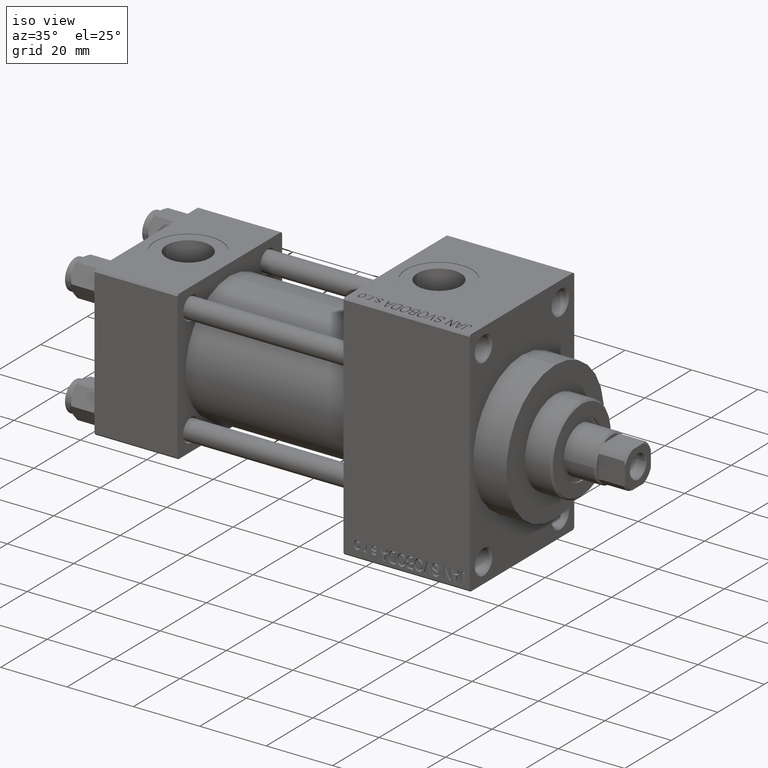
[diagram: clean part render]
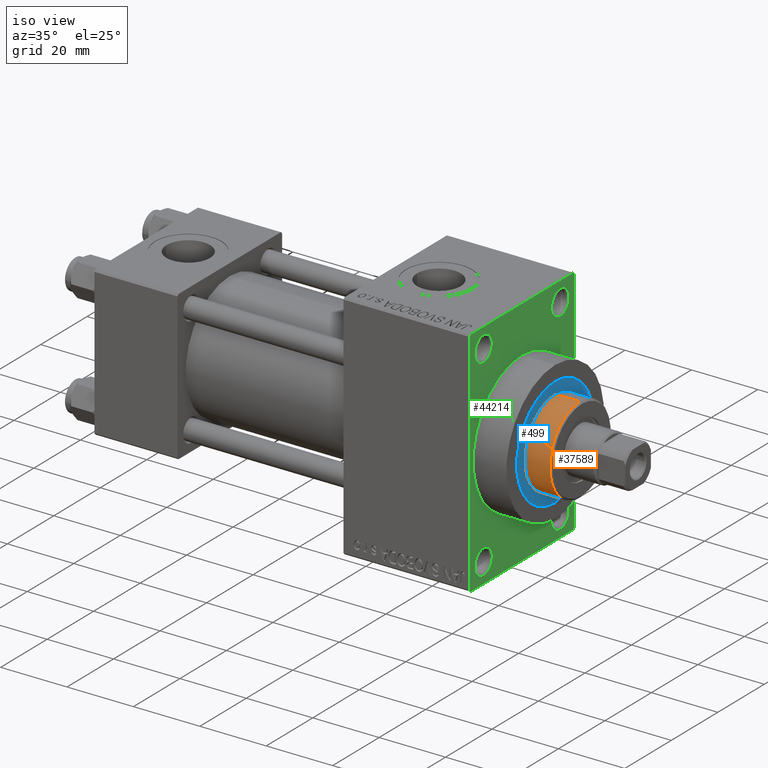
[diagram: same view with three faces highlighted in distinct colors, each labeled with its STEP entity id]
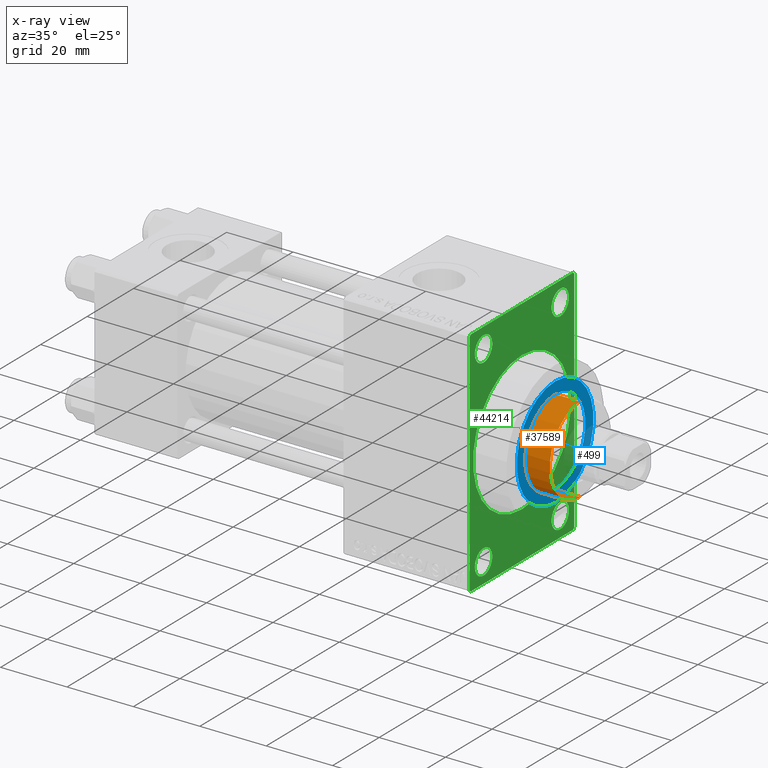
[diagram: x-ray of the same camera — body ghosted, the three highlighted faces saturated]
A machine part, iso view with three faces highlighted in distinct colors.
The next image is the same camera in x-ray (body ghosted, the three faces saturated) — at least one of them is partly hidden behind the body in this view.
Their STEP definitions:

[orange] entity #37589 — the highlighted cylindrical surface (partial cylindrical patch) has radius 13 mm, axis along (-1, 0, 0).
#790 = CIRCLE ( 'NONE', #41210, 13.00000000000000178 ) ;
#2930 = LINE ( 'NONE', #36934, #48060 ) ;
#4318 = CARTESIAN_POINT ( 'NONE',  ( 0.000000000000000000, 0.000000000000000000, 43.25999999999999801 ) ) ;
#8083 = CARTESIAN_POINT ( 'NONE',  ( -13.00000000000000178, 0.000000000000000000, 50.75999999999997669 ) ) ;
#8290 = CYLINDRICAL_SURFACE ( 'NONE', #13340, 13.00000000000000178 ) ;
#9395 = DIRECTION ( 'NONE',  ( 0.000000000000000000, 0.000000000000000000, -1.000000000000000000 ) ) ;
#9449 = DIRECTION ( 'NONE',  ( -0.000000000000000000, -0.000000000000000000, -1.000000000000000000 ) ) ;
#10491 = EDGE_CURVE ( 'NONE', #21892, #45975, #2930, .T. ) ;
#11060 = CARTESIAN_POINT ( 'NONE',  ( -13.00000000000000178, 0.000000000000000000, 51.25999999999999801 ) ) ;
#11310 = DIRECTION ( 'NONE',  ( -0.000000000000000000, -0.000000000000000000, -1.000000000000000000 ) ) ;
#11358 = ORIENTED_EDGE ( 'NONE', *, *, #19814, .T. ) ;
#11648 = VECTOR ( 'NONE', #11310, 1000.000000000000000 ) ;
#12006 = DIRECTION ( 'NONE',  ( 1.000000000000000000, 0.000000000000000000, 0.000000000000000000 ) ) ;
#12944 = EDGE_CURVE ( 'NONE', #25234, #23628, #26227, .T. ) ;
#13340 = AXIS2_PLACEMENT_3D ( 'NONE', #23190, #9449, #19457 ) ;
#16024 = EDGE_LOOP ( 'NONE', ( #11358, #32258, #41852, #42076 ) ) ;
#18295 = CARTESIAN_POINT ( 'NONE',  ( 13.00000000000000178, 1.592040838891559293E-15, 50.75999999999997669 ) ) ;
#19457 = DIRECTION ( 'NONE',  ( -1.000000000000000000, 0.000000000000000000, 0.000000000000000000 ) ) ;
#19814 = EDGE_CURVE ( 'NONE', #25234, #21892, #790, .T. ) ;
#21179 = CIRCLE ( 'NONE', #48946, 13.00000000000000178 ) ;
#21892 = VERTEX_POINT ( 'NONE', #18295 ) ;
#23190 = CARTESIAN_POINT ( 'NONE',  ( 0.000000000000000000, 0.000000000000000000, 51.25999999999999801 ) ) ;
#23628 = VERTEX_POINT ( 'NONE', #24007 ) ;
#24007 = CARTESIAN_POINT ( 'NONE',  ( -13.00000000000000178, 0.000000000000000000, 43.25999999999999801 ) ) ;
#24565 = DIRECTION ( 'NONE',  ( 1.000000000000000000, 0.000000000000000000, 0.000000000000000000 ) ) ;
#25234 = VERTEX_POINT ( 'NONE', #8083 ) ;
#26227 = LINE ( 'NONE', #11060, #11648 ) ;
#28285 = CARTESIAN_POINT ( 'NONE',  ( 0.000000000000000000, 0.000000000000000000, 50.75999999999997669 ) ) ;
#30933 = CARTESIAN_POINT ( 'NONE',  ( 13.00000000000000178, 1.592040838891559293E-15, 43.25999999999999801 ) ) ;
#31194 = EDGE_CURVE ( 'NONE', #45975, #23628, #21179, .T. ) ;
#32258 = ORIENTED_EDGE ( 'NONE', *, *, #10491, .T. ) ;
#36696 = DIRECTION ( 'NONE',  ( -0.000000000000000000, -0.000000000000000000, -1.000000000000000000 ) ) ;
#36934 = CARTESIAN_POINT ( 'NONE',  ( 13.00000000000000178, 1.592040838891559293E-15, 51.25999999999999801 ) ) ;
#37589 = ADVANCED_FACE ( 'NONE', ( #46027 ), #8290, .T. ) ;
#41210 = AXIS2_PLACEMENT_3D ( 'NONE', #28285, #9395, #24565 ) ;
#41852 = ORIENTED_EDGE ( 'NONE', *, *, #31194, .T. ) ;
#42076 = ORIENTED_EDGE ( 'NONE', *, *, #12944, .F. ) ;
#45975 = VERTEX_POINT ( 'NONE', #30933 ) ;
#46024 = DIRECTION ( 'NONE',  ( 0.000000000000000000, 0.000000000000000000, 1.000000000000000000 ) ) ;
#46027 = FACE_OUTER_BOUND ( 'NONE', #16024, .T. ) ;
#48060 = VECTOR ( 'NONE', #36696, 1000.000000000000000 ) ;
#48946 = AXIS2_PLACEMENT_3D ( 'NONE', #4318, #46024, #12006 ) ;

[blue] entity #499 — the highlighted planar face has unit normal (1, -0, -0).
#381 = EDGE_LOOP ( 'NONE', ( #10657, #14190 ) ) ;
#499 = ADVANCED_FACE ( 'NONE', ( #3383, #21751 ), #28736, .T. ) ;
#2591 = AXIS2_PLACEMENT_3D ( 'NONE', #21521, #6139, #44601 ) ;
#3194 = CARTESIAN_POINT ( 'NONE',  ( 16.50000000000000000, 2.020667218593133100E-15, 43.25999999999999801 ) ) ;
#3383 = FACE_BOUND ( 'NONE', #40912, .T. ) ;
#4318 = CARTESIAN_POINT ( 'NONE',  ( 0.000000000000000000, 0.000000000000000000, 43.25999999999999801 ) ) ;
#4737 = CARTESIAN_POINT ( 'NONE',  ( 0.000000000000000000, 0.000000000000000000, 43.25999999999999801 ) ) ;
#5072 = ORIENTED_EDGE ( 'NONE', *, *, #23498, .F. ) ;
#6139 = DIRECTION ( 'NONE',  ( 0.000000000000000000, 0.000000000000000000, 1.000000000000000000 ) ) ;
#8552 = CIRCLE ( 'NONE', #26793, 16.50000000000000000 ) ;
#10657 = ORIENTED_EDGE ( 'NONE', *, *, #36078, .T. ) ;
#12006 = DIRECTION ( 'NONE',  ( 1.000000000000000000, 0.000000000000000000, 0.000000000000000000 ) ) ;
#12713 = VERTEX_POINT ( 'NONE', #3194 ) ;
#13451 = AXIS2_PLACEMENT_3D ( 'NONE', #17591, #28287, #43673 ) ;
#13821 = CARTESIAN_POINT ( 'NONE',  ( 0.000000000000000000, 0.000000000000000000, 43.25999999999999801 ) ) ;
#14190 = ORIENTED_EDGE ( 'NONE', *, *, #49106, .T. ) ;
#17591 = CARTESIAN_POINT ( 'NONE',  ( 0.000000000000000000, 0.000000000000000000, 43.25999999999999801 ) ) ;
#19870 = DIRECTION ( 'NONE',  ( 0.000000000000000000, 0.000000000000000000, 1.000000000000000000 ) ) ;
#21179 = CIRCLE ( 'NONE', #48946, 13.00000000000000178 ) ;
#21278 = DIRECTION ( 'NONE',  ( 1.000000000000000000, 0.000000000000000000, 0.000000000000000000 ) ) ;
#21521 = CARTESIAN_POINT ( 'NONE',  ( 0.000000000000000000, 0.000000000000000000, 43.25999999999999801 ) ) ;
#21751 = FACE_OUTER_BOUND ( 'NONE', #381, .T. ) ;
#23498 = EDGE_CURVE ( 'NONE', #23628, #45975, #26153, .T. ) ;
#23628 = VERTEX_POINT ( 'NONE', #24007 ) ;
#24007 = CARTESIAN_POINT ( 'NONE',  ( -13.00000000000000178, 0.000000000000000000, 43.25999999999999801 ) ) ;
#26153 = CIRCLE ( 'NONE', #13451, 13.00000000000000178 ) ;
#26793 = AXIS2_PLACEMENT_3D ( 'NONE', #4737, #19870, #28566 ) ;
#28287 = DIRECTION ( 'NONE',  ( 0.000000000000000000, 0.000000000000000000, 1.000000000000000000 ) ) ;
#28566 = DIRECTION ( 'NONE',  ( 1.000000000000000000, 0.000000000000000000, 0.000000000000000000 ) ) ;
#28736 = PLANE ( 'NONE',  #2591 ) ;
#30933 = CARTESIAN_POINT ( 'NONE',  ( 13.00000000000000178, 1.592040838891559293E-15, 43.25999999999999801 ) ) ;
#31194 = EDGE_CURVE ( 'NONE', #45975, #23628, #21179, .T. ) ;
#32209 = DIRECTION ( 'NONE',  ( 0.000000000000000000, 0.000000000000000000, 1.000000000000000000 ) ) ;
#35844 = AXIS2_PLACEMENT_3D ( 'NONE', #13821, #32209, #21278 ) ;
#36078 = EDGE_CURVE ( 'NONE', #49147, #12713, #8552, .T. ) ;
#40882 = CARTESIAN_POINT ( 'NONE',  ( -16.50000000000000000, 0.000000000000000000, 43.25999999999999801 ) ) ;
#40912 = EDGE_LOOP ( 'NONE', ( #5072, #45953 ) ) ;
#42199 = CIRCLE ( 'NONE', #35844, 16.50000000000000000 ) ;
#43673 = DIRECTION ( 'NONE',  ( 1.000000000000000000, 0.000000000000000000, 0.000000000000000000 ) ) ;
#44601 = DIRECTION ( 'NONE',  ( 1.000000000000000000, 0.000000000000000000, -0.000000000000000000 ) ) ;
#45953 = ORIENTED_EDGE ( 'NONE', *, *, #31194, .F. ) ;
#45975 = VERTEX_POINT ( 'NONE', #30933 ) ;
#46024 = DIRECTION ( 'NONE',  ( 0.000000000000000000, 0.000000000000000000, 1.000000000000000000 ) ) ;
#48946 = AXIS2_PLACEMENT_3D ( 'NONE', #4318, #46024, #12006 ) ;
#49106 = EDGE_CURVE ( 'NONE', #12713, #49147, #42199, .T. ) ;
#49147 = VERTEX_POINT ( 'NONE', #40882 ) ;

[green] entity #44214 — the highlighted planar face has unit normal (-1, 0, 0).
#709 = DIRECTION ( 'NONE',  ( 0.000000000000000000, -1.000000000000000000, 0.000000000000000000 ) ) ;
#1058 = CARTESIAN_POINT ( 'NONE',  ( 113.0000000000000142, -16.50000000000000000, 29.00000000000000711 ) ) ;
#1971 = VERTEX_POINT ( 'NONE', #42634 ) ;
#2594 = VERTEX_POINT ( 'NONE', #40516 ) ;
#2610 = CARTESIAN_POINT ( 'NONE',  ( 113.0000000000000142, 22.49999999999999645, -34.50000000000000000 ) ) ;
#2894 = FACE_BOUND ( 'NONE', #20464, .T. ) ;
#2966 = CIRCLE ( 'NONE', #21984, 3.750000000000072831 ) ;
#3050 = VERTEX_POINT ( 'NONE', #14787 ) ;
#3070 = CIRCLE ( 'NONE', #12587, 3.750000000000072831 ) ;
#3179 = CIRCLE ( 'NONE', #39648, 3.750000000000069278 ) ;
#3399 = DIRECTION ( 'NONE',  ( 0.000000000000000000, 0.000000000000000000, 1.000000000000000000 ) ) ;
#3807 = ORIENTED_EDGE ( 'NONE', *, *, #16156, .F. ) ;
#4048 = ORIENTED_EDGE ( 'NONE', *, *, #29317, .T. ) ;
#4741 = LINE ( 'NONE', #12674, #43368 ) ;
#5004 = EDGE_CURVE ( 'NONE', #17662, #36279, #46831, .T. ) ;
#5134 = EDGE_LOOP ( 'NONE', ( #24540, #6006, #16809, #4048, #42749, #41779, #6882, #12185 ) ) ;
#5545 = CARTESIAN_POINT ( 'NONE',  ( 113.0000000000000142, -22.50000000000000355, 34.50000000000000000 ) ) ;
#5555 = VECTOR ( 'NONE', #21437, 1000.000000000000000 ) ;
#5585 = CARTESIAN_POINT ( 'NONE',  ( 113.0000000000000142, -21.99999999999998934, 35.00000000000000000 ) ) ;
#5864 = CARTESIAN_POINT ( 'NONE',  ( 113.0000000000000142, 16.50000000000000000, 29.00000000000000355 ) ) ;
#5913 = ORIENTED_EDGE ( 'NONE', *, *, #38119, .T. ) ;
#6006 = ORIENTED_EDGE ( 'NONE', *, *, #5004, .T. ) ;
#6137 = PLANE ( 'NONE',  #27876 ) ;
#6622 = DIRECTION ( 'NONE',  ( -1.000000000000000000, 0.000000000000000000, -0.000000000000000000 ) ) ;
#6882 = ORIENTED_EDGE ( 'NONE', *, *, #31812, .T. ) ;
#6900 = AXIS2_PLACEMENT_3D ( 'NONE', #44862, #25523, #3399 ) ;
#7017 = CARTESIAN_POINT ( 'NONE',  ( 113.0000000000000142, -16.50000000000000000, -28.99999999999999289 ) ) ;
#7250 = CARTESIAN_POINT ( 'NONE',  ( 113.0000000000000142, 2.571758278209441661E-15, -21.00000000000000000 ) ) ;
#7661 = CARTESIAN_POINT ( 'NONE',  ( 113.0000000000000142, 21.99999999999999645, 35.00000000000000000 ) ) ;
#7874 = DIRECTION ( 'NONE',  ( 0.000000000000000000, -1.000000000000000000, 0.000000000000000000 ) ) ;
#7987 = AXIS2_PLACEMENT_3D ( 'NONE', #31320, #26885, #42512 ) ;
#8524 = VECTOR ( 'NONE', #7874, 1000.000000000000000 ) ;
#8745 = EDGE_CURVE ( 'NONE', #12918, #36279, #23553, .T. ) ;
#9939 = EDGE_CURVE ( 'NONE', #11252, #16803, #12305, .T. ) ;
#10409 = DIRECTION ( 'NONE',  ( 0.000000000000000000, 0.000000000000000000, -1.000000000000000000 ) ) ;
#10779 = DIRECTION ( 'NONE',  ( -0.000000000000000000, 0.7071067811865474617, 0.7071067811865474617 ) ) ;
#10901 = CARTESIAN_POINT ( 'NONE',  ( 113.0000000000000142, -16.50000000000000000, -32.75000000000007105 ) ) ;
#10933 = AXIS2_PLACEMENT_3D ( 'NONE', #13654, #33243, #10409 ) ;
#11252 = VERTEX_POINT ( 'NONE', #22409 ) ;
#11553 = CARTESIAN_POINT ( 'NONE',  ( 113.0000000000000142, 16.50000000000000000, 25.24999999999993250 ) ) ;
#11882 = CARTESIAN_POINT ( 'NONE',  ( 113.0000000000000142, 22.49999999999999645, -35.00000000000000000 ) ) ;
#11924 = CARTESIAN_POINT ( 'NONE',  ( 113.0000000000000142, 0.000000000000000000, 0.000000000000000000 ) ) ;
#12185 = ORIENTED_EDGE ( 'NONE', *, *, #34387, .T. ) ;
#12305 = CIRCLE ( 'NONE', #25023, 3.750000000000076383 ) ;
#12587 = AXIS2_PLACEMENT_3D ( 'NONE', #5864, #43111, #35905 ) ;
#12674 = CARTESIAN_POINT ( 'NONE',  ( 113.0000000000000142, -22.50000000000000355, 35.00000000000000000 ) ) ;
#12918 = VERTEX_POINT ( 'NONE', #47607 ) ;
#13541 = CARTESIAN_POINT ( 'NONE',  ( 113.0000000000000142, -22.50000000000000355, -34.49999999999997158 ) ) ;
#13654 = CARTESIAN_POINT ( 'NONE',  ( 113.0000000000000142, 0.000000000000000000, 0.000000000000000000 ) ) ;
#14610 = DIRECTION ( 'NONE',  ( 0.000000000000000000, -0.7071067811865474617, 0.7071067811865474617 ) ) ;
#14698 = DIRECTION ( 'NONE',  ( -1.000000000000000000, -0.000000000000000000, -0.000000000000000000 ) ) ;
#14787 = CARTESIAN_POINT ( 'NONE',  ( 113.0000000000000142, 22.49999999999999645, 34.50000000000000000 ) ) ;
#14832 = CIRCLE ( 'NONE', #6900, 3.750000000000076383 ) ;
#15195 = CARTESIAN_POINT ( 'NONE',  ( 113.0000000000000142, 16.50000000000000000, 29.00000000000000355 ) ) ;
#15434 = VECTOR ( 'NONE', #709, 1000.000000000000000 ) ;
#15435 = VERTEX_POINT ( 'NONE', #5585 ) ;
#15538 = VECTOR ( 'NONE', #10779, 1000.000000000000114 ) ;
#16156 = EDGE_CURVE ( 'NONE', #29700, #16840, #18870, .T. ) ;
#16803 = VERTEX_POINT ( 'NONE', #36793 ) ;
#16809 = ORIENTED_EDGE ( 'NONE', *, *, #8745, .F. ) ;
#16840 = VERTEX_POINT ( 'NONE', #7250 ) ;
#17052 = FACE_BOUND ( 'NONE', #48868, .T. ) ;
#17300 = FACE_BOUND ( 'NONE', #47293, .T. ) ;
#17662 = VERTEX_POINT ( 'NONE', #13541 ) ;
#17846 = VECTOR ( 'NONE', #24233, 999.9999999999998863 ) ;
#18870 = CIRCLE ( 'NONE', #10933, 21.00000000000000000 ) ;
#18950 = DIRECTION ( 'NONE',  ( -1.000000000000000000, -0.000000000000000000, -0.000000000000000000 ) ) ;
#19414 = VERTEX_POINT ( 'NONE', #35351 ) ;
#19521 = LINE ( 'NONE', #31182, #8524 ) ;
#19744 = AXIS2_PLACEMENT_3D ( 'NONE', #39715, #41789, #43435 ) ;
#20464 = EDGE_LOOP ( 'NONE', ( #5913, #32501 ) ) ;
#20551 = EDGE_CURVE ( 'NONE', #3050, #30119, #29610, .T. ) ;
#21437 = DIRECTION ( 'NONE',  ( 0.000000000000000000, 0.000000000000000000, -1.000000000000000000 ) ) ;
#21984 = AXIS2_PLACEMENT_3D ( 'NONE', #15195, #30345, #34305 ) ;
#22119 = CIRCLE ( 'NONE', #19744, 3.750000000000076383 ) ;
#22409 = CARTESIAN_POINT ( 'NONE',  ( 113.0000000000000142, 16.50000000000000000, -32.75000000000007105 ) ) ;
#22826 = CARTESIAN_POINT ( 'NONE',  ( 113.0000000000000142, 0.000000000000000000, 21.00000000000000000 ) ) ;
#23019 = CARTESIAN_POINT ( 'NONE',  ( 113.0000000000000142, 21.99999999999999645, 35.00000000000000000 ) ) ;
#23172 = DIRECTION ( 'NONE',  ( 0.000000000000000000, 0.000000000000000000, 1.000000000000000000 ) ) ;
#23553 = LINE ( 'NONE', #11882, #15434 ) ;
#23823 = EDGE_LOOP ( 'NONE', ( #25514, #24186 ) ) ;
#24186 = ORIENTED_EDGE ( 'NONE', *, *, #46710, .T. ) ;
#24233 = DIRECTION ( 'NONE',  ( 0.000000000000000000, 0.7071067811865376918, -0.7071067811865574537 ) ) ;
#24381 = AXIS2_PLACEMENT_3D ( 'NONE', #7017, #14698, #33815 ) ;
#24522 = FACE_OUTER_BOUND ( 'NONE', #5134, .T. ) ;
#24540 = ORIENTED_EDGE ( 'NONE', *, *, #33771, .T. ) ;
#24767 = FACE_BOUND ( 'NONE', #23823, .T. ) ;
#25023 = AXIS2_PLACEMENT_3D ( 'NONE', #39628, #47078, #46581 ) ;
#25514 = ORIENTED_EDGE ( 'NONE', *, *, #41503, .T. ) ;
#25523 = DIRECTION ( 'NONE',  ( -1.000000000000000000, -0.000000000000000000, -0.000000000000000000 ) ) ;
#25764 = ORIENTED_EDGE ( 'NONE', *, *, #9939, .T. ) ;
#26193 = LINE ( 'NONE', #39013, #15538 ) ;
#26246 = EDGE_CURVE ( 'NONE', #3050, #31827, #33484, .T. ) ;
#26885 = DIRECTION ( 'NONE',  ( -1.000000000000000000, -0.000000000000000000, -0.000000000000000000 ) ) ;
#27100 = DIRECTION ( 'NONE',  ( 0.000000000000000000, 0.000000000000000000, -1.000000000000000000 ) ) ;
#27235 = EDGE_LOOP ( 'NONE', ( #3807, #29210 ) ) ;
#27453 = VERTEX_POINT ( 'NONE', #45997 ) ;
#27650 = LINE ( 'NONE', #5545, #35424 ) ;
#27712 = CARTESIAN_POINT ( 'NONE',  ( 113.0000000000000142, -21.99999999999998934, -35.00000000000000000 ) ) ;
#27876 = AXIS2_PLACEMENT_3D ( 'NONE', #44361, #6622, #32205 ) ;
#28099 = ORIENTED_EDGE ( 'NONE', *, *, #30803, .T. ) ;
#28103 = VERTEX_POINT ( 'NONE', #29404 ) ;
#28642 = VERTEX_POINT ( 'NONE', #10901 ) ;
#28828 = ORIENTED_EDGE ( 'NONE', *, *, #32289, .T. ) ;
#29210 = ORIENTED_EDGE ( 'NONE', *, *, #44569, .F. ) ;
#29317 = EDGE_CURVE ( 'NONE', #12918, #30119, #26193, .T. ) ;
#29404 = CARTESIAN_POINT ( 'NONE',  ( 113.0000000000000142, 16.50000000000000000, 32.75000000000007816 ) ) ;
#29435 = AXIS2_PLACEMENT_3D ( 'NONE', #11924, #37510, #37762 ) ;
#29610 = LINE ( 'NONE', #33828, #5555 ) ;
#29700 = VERTEX_POINT ( 'NONE', #22826 ) ;
#30119 = VERTEX_POINT ( 'NONE', #2610 ) ;
#30345 = DIRECTION ( 'NONE',  ( -1.000000000000000000, -0.000000000000000000, -0.000000000000000000 ) ) ;
#30803 = EDGE_CURVE ( 'NONE', #27453, #28642, #14832, .T. ) ;
#31182 = CARTESIAN_POINT ( 'NONE',  ( 113.0000000000000142, 22.49999999999999645, 35.00000000000000000 ) ) ;
#31320 = CARTESIAN_POINT ( 'NONE',  ( 113.0000000000000142, -16.50000000000000000, 29.00000000000000711 ) ) ;
#31507 = EDGE_CURVE ( 'NONE', #28103, #40091, #2966, .T. ) ;
#31610 = DIRECTION ( 'NONE',  ( -0.000000000000000000, -0.7071067811865474617, -0.7071067811865474617 ) ) ;
#31812 = EDGE_CURVE ( 'NONE', #31827, #15435, #19521, .T. ) ;
#31827 = VERTEX_POINT ( 'NONE', #23019 ) ;
#32205 = DIRECTION ( 'NONE',  ( -0.000000000000000000, 0.000000000000000000, 1.000000000000000000 ) ) ;
#32289 = EDGE_CURVE ( 'NONE', #28642, #27453, #43298, .T. ) ;
#32501 = ORIENTED_EDGE ( 'NONE', *, *, #31507, .T. ) ;
#32618 = CIRCLE ( 'NONE', #29435, 21.00000000000000000 ) ;
#33243 = DIRECTION ( 'NONE',  ( 1.000000000000000000, 0.000000000000000000, 0.000000000000000000 ) ) ;
#33484 = LINE ( 'NONE', #7661, #34461 ) ;
#33771 = EDGE_CURVE ( 'NONE', #2594, #17662, #4741, .T. ) ;
#33815 = DIRECTION ( 'NONE',  ( 0.000000000000000000, 0.000000000000000000, 1.000000000000000000 ) ) ;
#33828 = CARTESIAN_POINT ( 'NONE',  ( 113.0000000000000142, 22.49999999999999645, 35.00000000000000000 ) ) ;
#34305 = DIRECTION ( 'NONE',  ( 0.000000000000000000, 0.000000000000000000, 1.000000000000000000 ) ) ;
#34387 = EDGE_CURVE ( 'NONE', #15435, #2594, #27650, .T. ) ;
#34461 = VECTOR ( 'NONE', #14610, 1000.000000000000114 ) ;
#35351 = CARTESIAN_POINT ( 'NONE',  ( 113.0000000000000142, -16.50000000000000000, 25.24999999999993960 ) ) ;
#35424 = VECTOR ( 'NONE', #31610, 1000.000000000000114 ) ;
#35905 = DIRECTION ( 'NONE',  ( 0.000000000000000000, 0.000000000000000000, 1.000000000000000000 ) ) ;
#36279 = VERTEX_POINT ( 'NONE', #46380 ) ;
#36793 = CARTESIAN_POINT ( 'NONE',  ( 113.0000000000000142, 16.50000000000000000, -25.24999999999992184 ) ) ;
#37510 = DIRECTION ( 'NONE',  ( 1.000000000000000000, 0.000000000000000000, 0.000000000000000000 ) ) ;
#37762 = DIRECTION ( 'NONE',  ( 0.000000000000000000, 0.000000000000000000, -1.000000000000000000 ) ) ;
#38119 = EDGE_CURVE ( 'NONE', #40091, #28103, #3070, .T. ) ;
#39013 = CARTESIAN_POINT ( 'NONE',  ( 113.0000000000000142, 22.49999999999999645, -34.50000000000000000 ) ) ;
#39464 = EDGE_CURVE ( 'NONE', #16803, #11252, #22119, .T. ) ;
#39628 = CARTESIAN_POINT ( 'NONE',  ( 113.0000000000000142, 16.50000000000000000, -28.99999999999999289 ) ) ;
#39648 = AXIS2_PLACEMENT_3D ( 'NONE', #1058, #18950, #23172 ) ;
#39715 = CARTESIAN_POINT ( 'NONE',  ( 113.0000000000000142, 16.50000000000000000, -28.99999999999999289 ) ) ;
#40091 = VERTEX_POINT ( 'NONE', #11553 ) ;
#40516 = CARTESIAN_POINT ( 'NONE',  ( 113.0000000000000142, -22.50000000000000355, 34.50000000000000000 ) ) ;
#40642 = FACE_BOUND ( 'NONE', #27235, .T. ) ;
#41503 = EDGE_CURVE ( 'NONE', #19414, #1971, #3179, .T. ) ;
#41779 = ORIENTED_EDGE ( 'NONE', *, *, #26246, .T. ) ;
#41789 = DIRECTION ( 'NONE',  ( -1.000000000000000000, -0.000000000000000000, -0.000000000000000000 ) ) ;
#42512 = DIRECTION ( 'NONE',  ( 0.000000000000000000, 0.000000000000000000, 1.000000000000000000 ) ) ;
#42634 = CARTESIAN_POINT ( 'NONE',  ( 113.0000000000000142, -16.50000000000000000, 32.75000000000007816 ) ) ;
#42749 = ORIENTED_EDGE ( 'NONE', *, *, #20551, .F. ) ;
#43111 = DIRECTION ( 'NONE',  ( -1.000000000000000000, -0.000000000000000000, -0.000000000000000000 ) ) ;
#43298 = CIRCLE ( 'NONE', #24381, 3.750000000000076383 ) ;
#43368 = VECTOR ( 'NONE', #27100, 1000.000000000000000 ) ;
#43435 = DIRECTION ( 'NONE',  ( 0.000000000000000000, 0.000000000000000000, 1.000000000000000000 ) ) ;
#44214 = ADVANCED_FACE ( 'NONE', ( #24767, #17052, #17300, #2894, #40642, #24522 ), #6137, .F. ) ;
#44361 = CARTESIAN_POINT ( 'NONE',  ( 113.0000000000000142, 0.000000000000000000, 0.000000000000000000 ) ) ;
#44569 = EDGE_CURVE ( 'NONE', #16840, #29700, #32618, .T. ) ;
#44862 = CARTESIAN_POINT ( 'NONE',  ( 113.0000000000000142, -16.50000000000000000, -28.99999999999999289 ) ) ;
#44934 = ORIENTED_EDGE ( 'NONE', *, *, #39464, .T. ) ;
#45271 = CIRCLE ( 'NONE', #7987, 3.750000000000069278 ) ;
#45997 = CARTESIAN_POINT ( 'NONE',  ( 113.0000000000000142, -16.50000000000000000, -25.24999999999992184 ) ) ;
#46380 = CARTESIAN_POINT ( 'NONE',  ( 113.0000000000000142, -21.99999999999997513, -35.00000000000000000 ) ) ;
#46581 = DIRECTION ( 'NONE',  ( 0.000000000000000000, 0.000000000000000000, 1.000000000000000000 ) ) ;
#46710 = EDGE_CURVE ( 'NONE', #1971, #19414, #45271, .T. ) ;
#46831 = LINE ( 'NONE', #27712, #17846 ) ;
#47078 = DIRECTION ( 'NONE',  ( -1.000000000000000000, -0.000000000000000000, -0.000000000000000000 ) ) ;
#47293 = EDGE_LOOP ( 'NONE', ( #25764, #44934 ) ) ;
#47607 = CARTESIAN_POINT ( 'NONE',  ( 113.0000000000000142, 21.99999999999999645, -35.00000000000000000 ) ) ;
#48868 = EDGE_LOOP ( 'NONE', ( #28828, #28099 ) ) ;